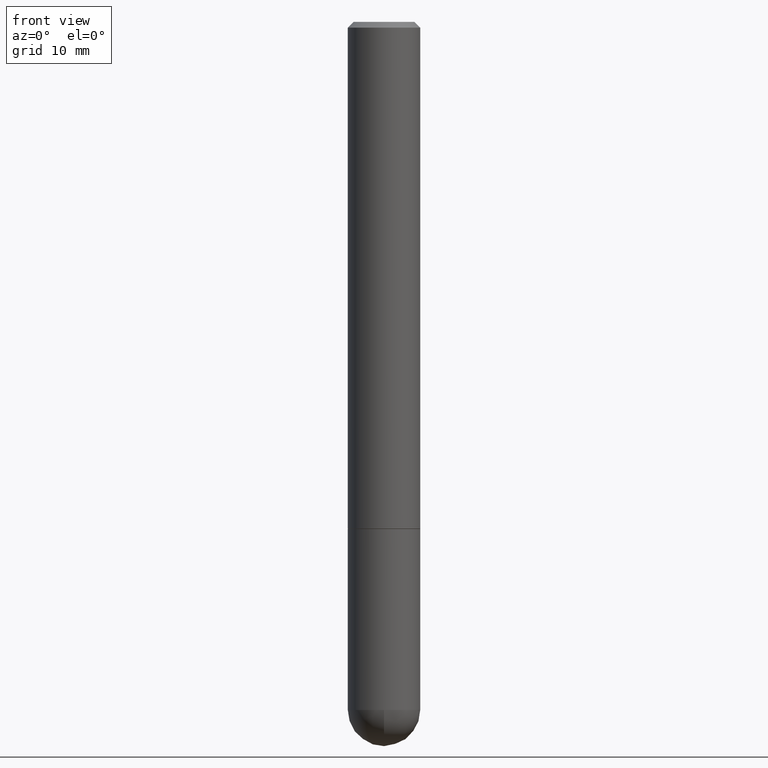
[diagram: clean part render]
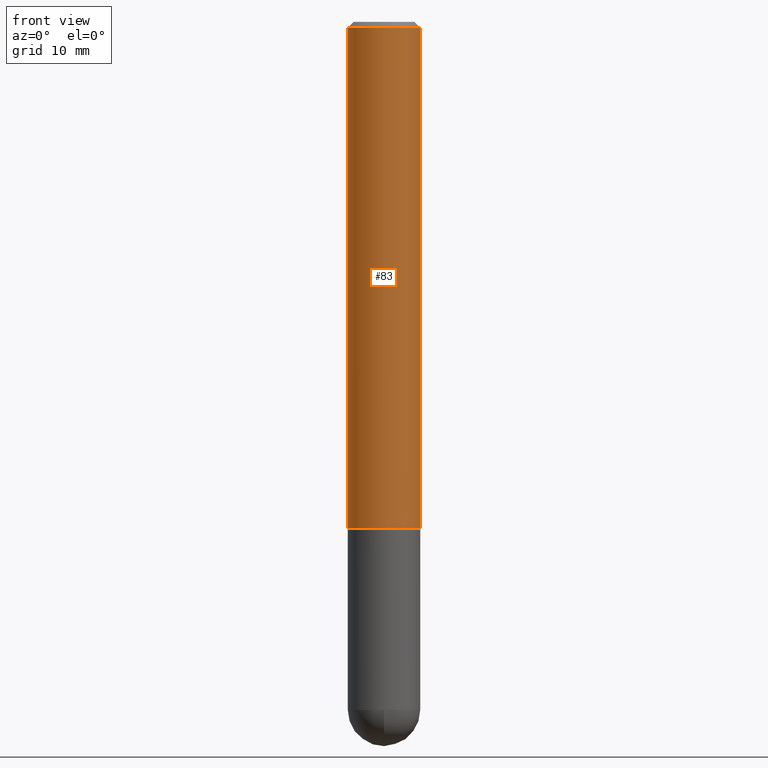
[diagram: same view with one face highlighted and labeled with its STEP entity id]
A machine part, front view. The second image highlights one B-rep face of the part: STEP entity #83.
In plain terms, the highlighted cylindrical surface (edge-blend (fillet) strip) has radius 3.175 mm, axis along (-0, 0, 1).
Its self-contained STEP definition (entity closure, byte-faithful):
#22 = EDGE_CURVE ( 'NONE', #146, #346, #187, .T. ) ;
#25 = DIRECTION ( 'NONE',  ( 1.000000000000000000, -6.982962677686267499E-15, 0.000000000000000000 ) ) ;
#52 = CARTESIAN_POINT ( 'NONE',  ( 0.1250000000000000278, -9.273918764983049407E-16, -0.02000000000000007674 ) ) ;
#64 = ORIENTED_EDGE ( 'NONE', *, *, #224, .F. ) ;
#74 = CARTESIAN_POINT ( 'NONE',  ( -0.1250000000000001388, 8.881784197001262184E-16, -6.148668862818638533E-30 ) ) ;
#76 = DIRECTION ( 'NONE',  ( -2.445468806185136877E-29, 3.491481338843145188E-15, 1.000000000000000000 ) ) ;
#83 = ADVANCED_FACE ( 'NONE', ( #206 ), #242, .T. ) ;
#140 = EDGE_LOOP ( 'NONE', ( #312, #245, #274, #64 ) ) ;
#141 = LINE ( 'NONE', #399, #188 ) ;
#144 = VECTOR ( 'NONE', #76, 39.37007874015748143 ) ;
#146 = VERTEX_POINT ( 'NONE', #294 ) ;
#147 = AXIS2_PLACEMENT_3D ( 'NONE', #178, #200, #338 ) ;
#178 = CARTESIAN_POINT ( 'NONE',  ( 0.000000000000000000, 0.000000000000000000, 0.000000000000000000 ) ) ;
#187 = CIRCLE ( 'NONE', #232, 0.1250000000000002498 ) ;
#188 = VECTOR ( 'NONE', #262, 39.37007874015748143 ) ;
#191 = EDGE_CURVE ( 'NONE', #146, #249, #351, .T. ) ;
#200 = DIRECTION ( 'NONE',  ( -2.445468806185136597E-29, 3.491481338843145583E-15, 1.000000000000000000 ) ) ;
#206 = FACE_OUTER_BOUND ( 'NONE', #140, .T. ) ;
#213 = EDGE_CURVE ( 'NONE', #346, #269, #141, .T. ) ;
#224 = EDGE_CURVE ( 'NONE', #249, #269, #362, .T. ) ;
#229 = CARTESIAN_POINT ( 'NONE',  ( -0.1250000000000000278, 8.030407079339204351E-16, -0.02000000000000007674 ) ) ;
#232 = AXIS2_PLACEMENT_3D ( 'NONE', #373, #392, #359 ) ;
#240 = CARTESIAN_POINT ( 'NONE',  ( 0.1250000000000002498, -6.979471196347446580E-15, -1.749000000000000110 ) ) ;
#242 = CYLINDRICAL_SURFACE ( 'NONE', #147, 0.1250000000000001388 ) ;
#245 = ORIENTED_EDGE ( 'NONE', *, *, #22, .T. ) ;
#249 = VERTEX_POINT ( 'NONE', #229 ) ;
#262 = DIRECTION ( 'NONE',  ( -2.445468806185136877E-29, 3.491481338843145188E-15, 1.000000000000000000 ) ) ;
#269 = VERTEX_POINT ( 'NONE', #52 ) ;
#274 = ORIENTED_EDGE ( 'NONE', *, *, #213, .T. ) ;
#294 = CARTESIAN_POINT ( 'NONE',  ( -0.1250000000000002498, -2.200036824506632516E-15, -1.749000000000000110 ) ) ;
#295 = DIRECTION ( 'NONE',  ( -2.445468806185136597E-29, 3.491481338843145583E-15, 1.000000000000000000 ) ) ;
#312 = ORIENTED_EDGE ( 'NONE', *, *, #191, .F. ) ;
#332 = CARTESIAN_POINT ( 'NONE',  ( 4.890937612370292426E-31, -6.982962677686317493E-17, -0.02000000000000007674 ) ) ;
#338 = DIRECTION ( 'NONE',  ( 1.000000000000000000, -6.982962677686266711E-15, 4.876176775795935793E-29 ) ) ;
#346 = VERTEX_POINT ( 'NONE', #240 ) ;
#351 = LINE ( 'NONE', #74, #144 ) ;
#359 = DIRECTION ( 'NONE',  ( 1.000000000000000000, -6.982962677686264344E-15, 0.000000000000000000 ) ) ;
#362 = CIRCLE ( 'NONE', #389, 0.1250000000000000278 ) ;
#373 = CARTESIAN_POINT ( 'NONE',  ( 4.277124942017804562E-29, -6.106600861636661664E-15, -1.749000000000000110 ) ) ;
#389 = AXIS2_PLACEMENT_3D ( 'NONE', #332, #295, #25 ) ;
#392 = DIRECTION ( 'NONE',  ( -2.445468806185136597E-29, 3.491481338843145583E-15, 1.000000000000000000 ) ) ;
#399 = CARTESIAN_POINT ( 'NONE',  ( 0.1250000000000001388, -8.728703347107843249E-16, 6.095220969744926748E-30 ) ) ;